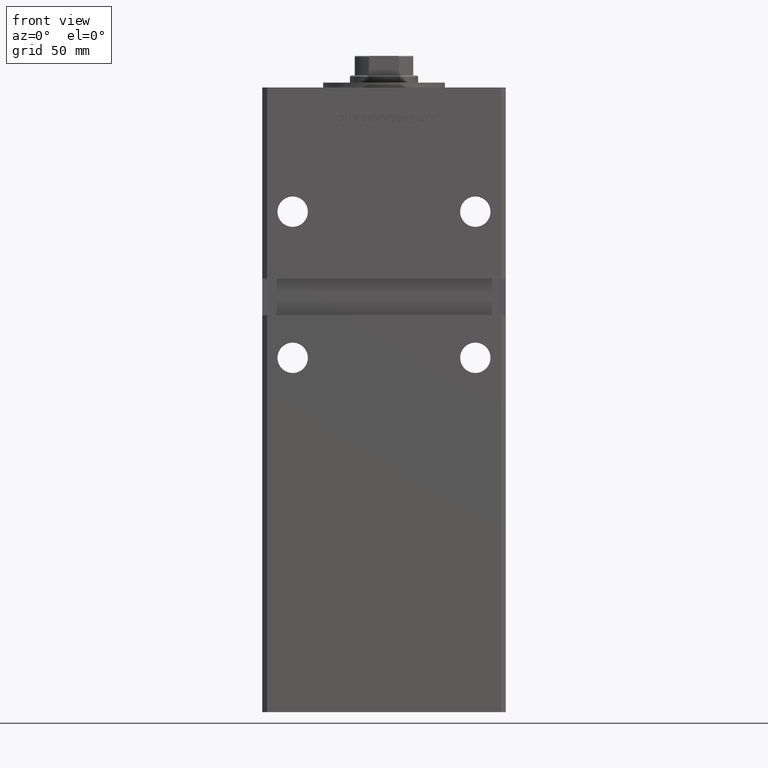
[diagram: clean part render]
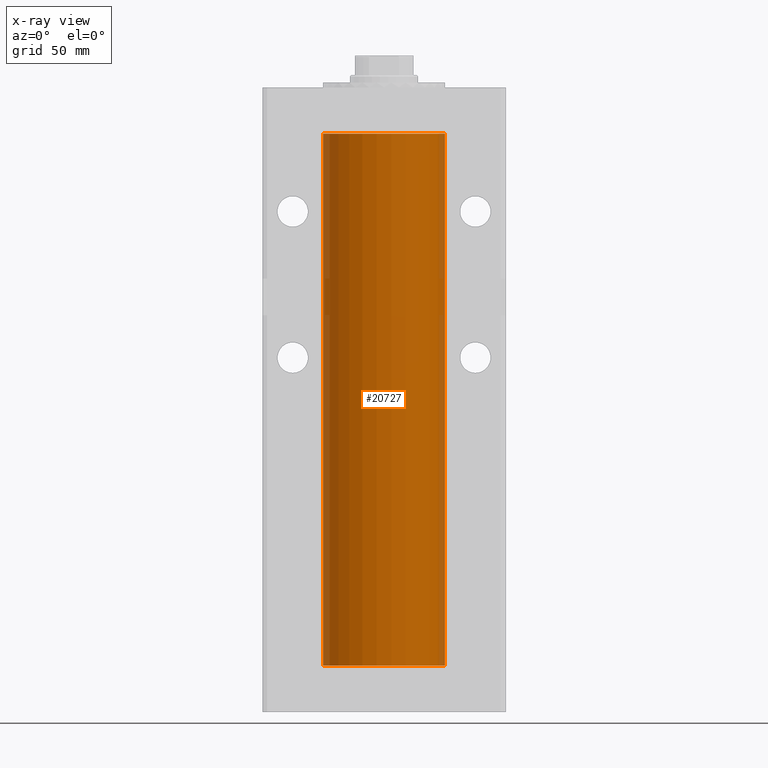
[diagram: x-ray — body ghosted, one internal face saturated and labeled with its STEP entity id]
A machine part, front view, then the same camera in x-ray: the body is ghosted and one INTERNAL B-rep face — a face not visible from any outside direction — is saturated and labeled: STEP entity #20727.
In plain terms, the highlighted cylindrical surface (partial cylindrical patch) has radius 25 mm, axis along (-0, -0, -1).
Its self-contained STEP definition (entity closure, byte-faithful):
#1208 = CYLINDRICAL_SURFACE ( 'NONE', #41047, 25.00000000000000000 ) ;
#4480 = ORIENTED_EDGE ( 'NONE', *, *, #19995, .T. ) ;
#5014 = ORIENTED_EDGE ( 'NONE', *, *, #41938, .F. ) ;
#5331 = CARTESIAN_POINT ( 'NONE',  ( 0.000000000000000000, 0.000000000000000000, 218.5000000000000000 ) ) ;
#9389 = CARTESIAN_POINT ( 'NONE',  ( -25.00000000000000000, 0.000000000000000000, 218.5000000000000000 ) ) ;
#10070 = CARTESIAN_POINT ( 'NONE',  ( 25.00000000000000000, 3.061616997868383043E-15, 218.5000000000000000 ) ) ;
#10107 = CARTESIAN_POINT ( 'NONE',  ( 0.000000000000000000, 0.000000000000000000, 0.000000000000000000 ) ) ;
#11592 = AXIS2_PLACEMENT_3D ( 'NONE', #5331, #21770, #17732 ) ;
#14415 = DIRECTION ( 'NONE',  ( 1.000000000000000000, 0.000000000000000000, 0.000000000000000000 ) ) ;
#16689 = VERTEX_POINT ( 'NONE', #37648 ) ;
#17544 = ORIENTED_EDGE ( 'NONE', *, *, #29041, .F. ) ;
#17629 = DIRECTION ( 'NONE',  ( -0.000000000000000000, -0.000000000000000000, -1.000000000000000000 ) ) ;
#17732 = DIRECTION ( 'NONE',  ( 1.000000000000000000, 0.000000000000000000, 0.000000000000000000 ) ) ;
#17900 = DIRECTION ( 'NONE',  ( -1.000000000000000000, 0.000000000000000000, 0.000000000000000000 ) ) ;
#18431 = CARTESIAN_POINT ( 'NONE',  ( -25.00000000000000000, 0.000000000000000000, 218.5000000000000000 ) ) ;
#19995 = EDGE_CURVE ( 'NONE', #46988, #23746, #52342, .T. ) ;
#20727 = ADVANCED_FACE ( 'NONE', ( #42944 ), #1208, .F. ) ;
#20863 = VERTEX_POINT ( 'NONE', #18431 ) ;
#21233 = VECTOR ( 'NONE', #47235, 1000.000000000000000 ) ;
#21770 = DIRECTION ( 'NONE',  ( -0.000000000000000000, 0.000000000000000000, 1.000000000000000000 ) ) ;
#23746 = VERTEX_POINT ( 'NONE', #41211 ) ;
#26363 = LINE ( 'NONE', #9389, #42313 ) ;
#26515 = CARTESIAN_POINT ( 'NONE',  ( 0.000000000000000000, 0.000000000000000000, 218.5000000000000000 ) ) ;
#29041 = EDGE_CURVE ( 'NONE', #16689, #23746, #41189, .T. ) ;
#30834 = DIRECTION ( 'NONE',  ( -0.000000000000000000, 0.000000000000000000, 1.000000000000000000 ) ) ;
#36774 = EDGE_LOOP ( 'NONE', ( #41215, #4480, #17544, #5014 ) ) ;
#37648 = CARTESIAN_POINT ( 'NONE',  ( -25.00000000000000000, 0.000000000000000000, 0.000000000000000000 ) ) ;
#38212 = DIRECTION ( 'NONE',  ( -0.000000000000000000, -0.000000000000000000, -1.000000000000000000 ) ) ;
#41047 = AXIS2_PLACEMENT_3D ( 'NONE', #26515, #17629, #17900 ) ;
#41189 = CIRCLE ( 'NONE', #51521, 25.00000000000000000 ) ;
#41211 = CARTESIAN_POINT ( 'NONE',  ( 25.00000000000000000, 3.061616997868383043E-15, 0.000000000000000000 ) ) ;
#41215 = ORIENTED_EDGE ( 'NONE', *, *, #48573, .T. ) ;
#41938 = EDGE_CURVE ( 'NONE', #20863, #16689, #26363, .T. ) ;
#42313 = VECTOR ( 'NONE', #38212, 1000.000000000000000 ) ;
#42434 = CARTESIAN_POINT ( 'NONE',  ( 25.00000000000000000, 3.061616997868383043E-15, 218.5000000000000000 ) ) ;
#42944 = FACE_OUTER_BOUND ( 'NONE', #36774, .T. ) ;
#46988 = VERTEX_POINT ( 'NONE', #42434 ) ;
#47235 = DIRECTION ( 'NONE',  ( -0.000000000000000000, -0.000000000000000000, -1.000000000000000000 ) ) ;
#47745 = CIRCLE ( 'NONE', #11592, 25.00000000000000000 ) ;
#48573 = EDGE_CURVE ( 'NONE', #20863, #46988, #47745, .T. ) ;
#51521 = AXIS2_PLACEMENT_3D ( 'NONE', #10107, #30834, #14415 ) ;
#52342 = LINE ( 'NONE', #10070, #21233 ) ;